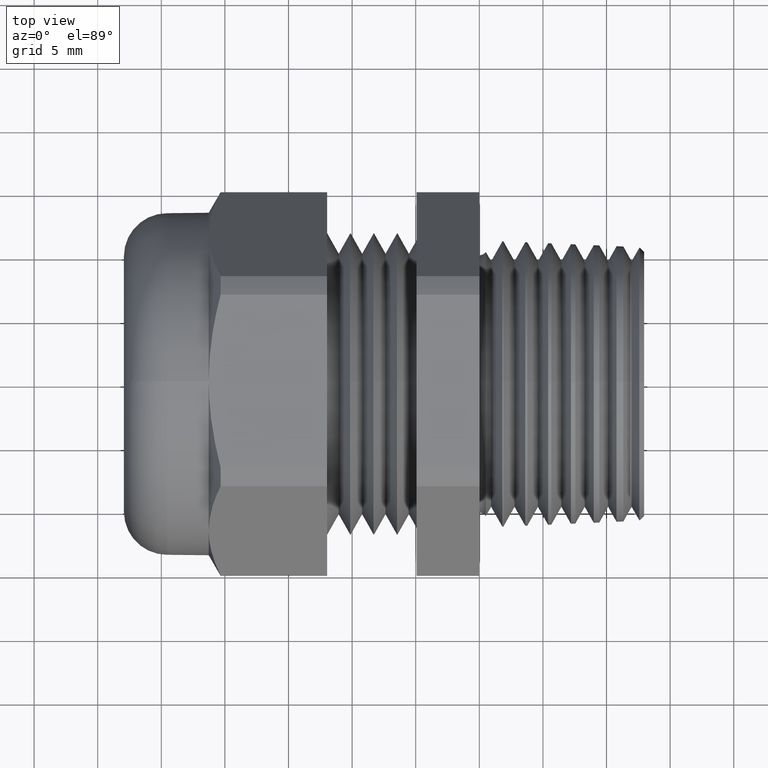
[diagram: clean part render]
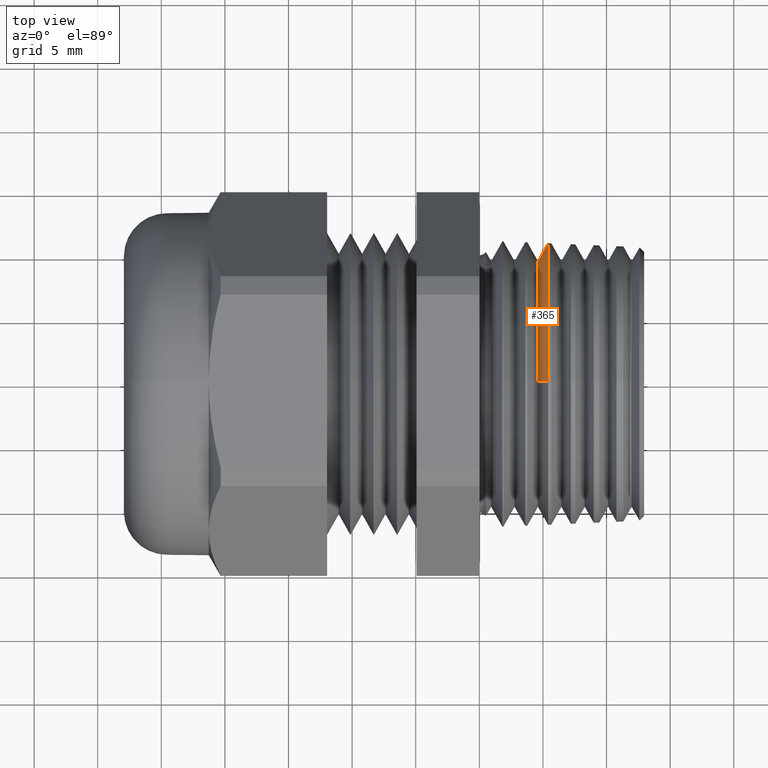
[diagram: same view with one face highlighted and labeled with its STEP entity id]
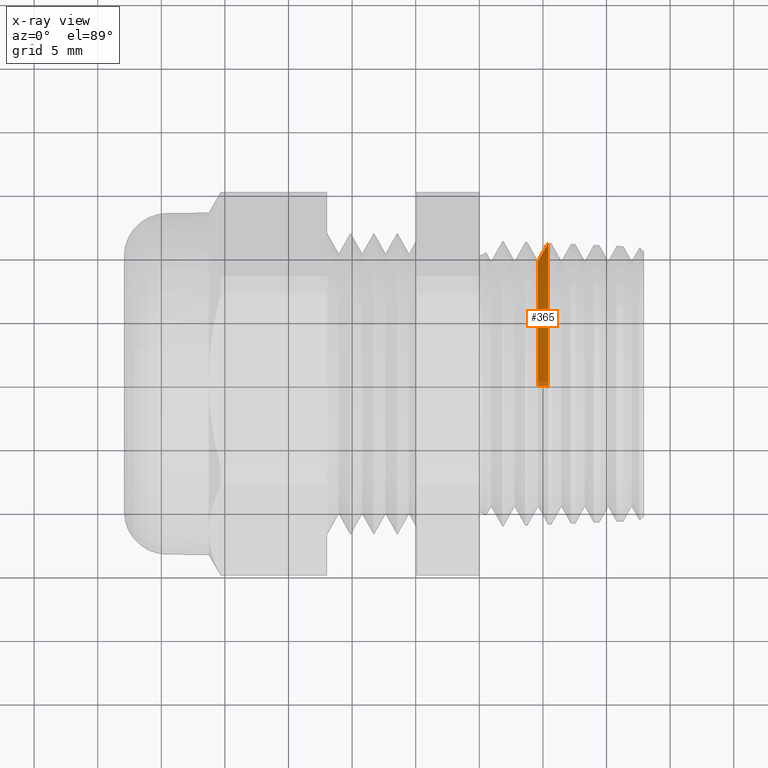
[diagram: x-ray of the same camera — body ghosted, the highlighted face saturated]
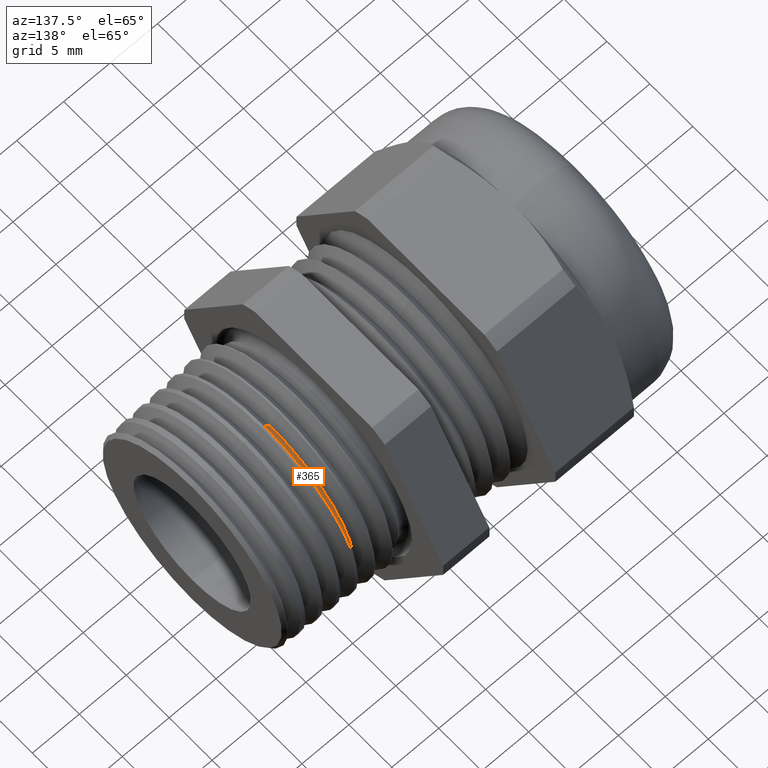
[diagram: same view with one face highlighted and labeled with its STEP entity id]
A machine part, top view. The second image highlights one B-rep face of the part: STEP entity #365.
The next image is the same camera in x-ray: the body ghosted, the highlighted face saturated — about 3% of this face is hidden behind the body in this view.
A second angle (auxiliary view) of the same face is appended — the face is thin or edge-on in the first view.
In plain terms, the highlighted conical surface has half-angle 60 deg.
Its self-contained STEP definition (entity closure, byte-faithful):
#365 = ADVANCED_FACE ( 'NONE', ( #1858 ), #1856, .T. ) ;
#366 = EDGE_LOOP ( 'NONE', ( #367, #461, #464, #467 ) ) ;
#367 = ORIENTED_EDGE ( 'NONE', *, *, #368, .F. ) ;
#368 = EDGE_CURVE ( 'NONE', #369, #460, #1851, .T. ) ;
#369 = VERTEX_POINT ( 'NONE', #1911 ) ;
#460 = VERTEX_POINT ( 'NONE', #2050 ) ;
#461 = ORIENTED_EDGE ( 'NONE', *, *, #462, .T. ) ;
#462 = EDGE_CURVE ( 'NONE', #369, #463, #2049, .T. ) ;
#463 = VERTEX_POINT ( 'NONE', #2045 ) ;
#464 = ORIENTED_EDGE ( 'NONE', *, *, #465, .T. ) ;
#465 = EDGE_CURVE ( 'NONE', #463, #466, #2044, .T. ) ;
#466 = VERTEX_POINT ( 'NONE', #2039 ) ;
#467 = ORIENTED_EDGE ( 'NONE', *, *, #468, .F. ) ;
#468 = EDGE_CURVE ( 'NONE', #460, #466, #2100, .T. ) ;
#1848 = DIRECTION ( 'NONE',  ( 0.0000000000000000000, 0.0000000000000000000, 1.000000000000000000 ) ) ;
#1849 = DIRECTION ( 'NONE',  ( -1.000000000000000000, 0.0000000000000000000, 0.0000000000000000000 ) ) ;
#1850 = AXIS2_PLACEMENT_3D ( 'NONE', #1857, #1849, #1848 ) ;
#1851 = CIRCLE ( 'NONE', #1850, 0.3814809735032225800 ) ;
#1852 = DIRECTION ( 'NONE',  ( 0.0000000000000000000, 0.0000000000000000000, -1.000000000000000000 ) ) ;
#1853 = DIRECTION ( 'NONE',  ( 1.000000000000000000, 0.0000000000000000000, 0.0000000000000000000 ) ) ;
#1854 = CARTESIAN_POINT ( 'NONE',  ( 0.1815298699037196900, 0.0000000000000000000, 0.0000000000000000000 ) ) ;
#1855 = AXIS2_PLACEMENT_3D ( 'NONE', #1854, #1853, #1852 ) ;
#1856 = CONICAL_SURFACE ( 'NONE', #1855, 0.3814809735032225800, 1.047197551196596100 ) ;
#1857 = CARTESIAN_POINT ( 'NONE',  ( 0.1815298699037196900, 0.0000000000000000000, 0.0000000000000000000 ) ) ;
#1858 = FACE_OUTER_BOUND ( 'NONE', #366, .T. ) ;
#1911 = CARTESIAN_POINT ( 'NONE',  ( 0.1815298699037196900, 0.0000000000000000000, 0.3814809735032225800 ) ) ;
#2039 = CARTESIAN_POINT ( 'NONE',  ( 0.2128374631523282400, 5.335875695034292900E-017, -0.4357073156725137000 ) ) ;
#2040 = DIRECTION ( 'NONE',  ( 0.0000000000000000000, 0.0000000000000000000, -1.000000000000000000 ) ) ;
#2041 = DIRECTION ( 'NONE',  ( -1.000000000000000000, 0.0000000000000000000, 0.0000000000000000000 ) ) ;
#2042 = CARTESIAN_POINT ( 'NONE',  ( 0.2128374631523282400, 0.0000000000000000000, 0.0000000000000000000 ) ) ;
#2043 = AXIS2_PLACEMENT_3D ( 'NONE', #2042, #2041, #2040 ) ;
#2044 = CIRCLE ( 'NONE', #2043, 0.4357073156725135800 ) ;
#2045 = CARTESIAN_POINT ( 'NONE',  ( 0.2128374631523282400, 0.0000000000000000000, 0.4357073156725137000 ) ) ;
#2046 = DIRECTION ( 'NONE',  ( 0.5000000000000013300, 1.060575238724905700E-016, 0.8660254037844377100 ) ) ;
#2047 = VECTOR ( 'NONE', #2046, 39.37007874015748900 ) ;
#2048 = CARTESIAN_POINT ( 'NONE',  ( 0.1815298699037196900, 4.671794531363377600E-017, 0.3814809735032225800 ) ) ;
#2049 = LINE ( 'NONE', #2048, #2047 ) ;
#2050 = CARTESIAN_POINT ( 'NONE',  ( 0.1815298699037196900, 5.021007929963810100E-017, -0.3814809735032225800 ) ) ;
#2097 = DIRECTION ( 'NONE',  ( 0.5000000000000013300, 0.0000000000000000000, -0.8660254037844377100 ) ) ;
#2098 = VECTOR ( 'NONE', #2097, 39.37007874015748900 ) ;
#2099 = CARTESIAN_POINT ( 'NONE',  ( 0.1815298699037196900, 0.0000000000000000000, -0.3814809735032225800 ) ) ;
#2100 = LINE ( 'NONE', #2099, #2098 ) ;